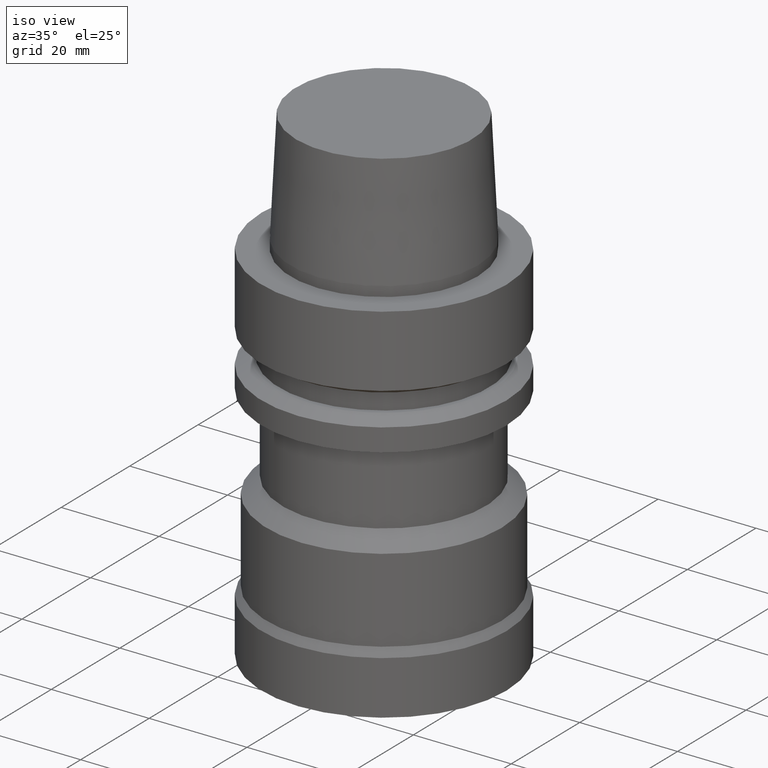
[diagram: clean part render]
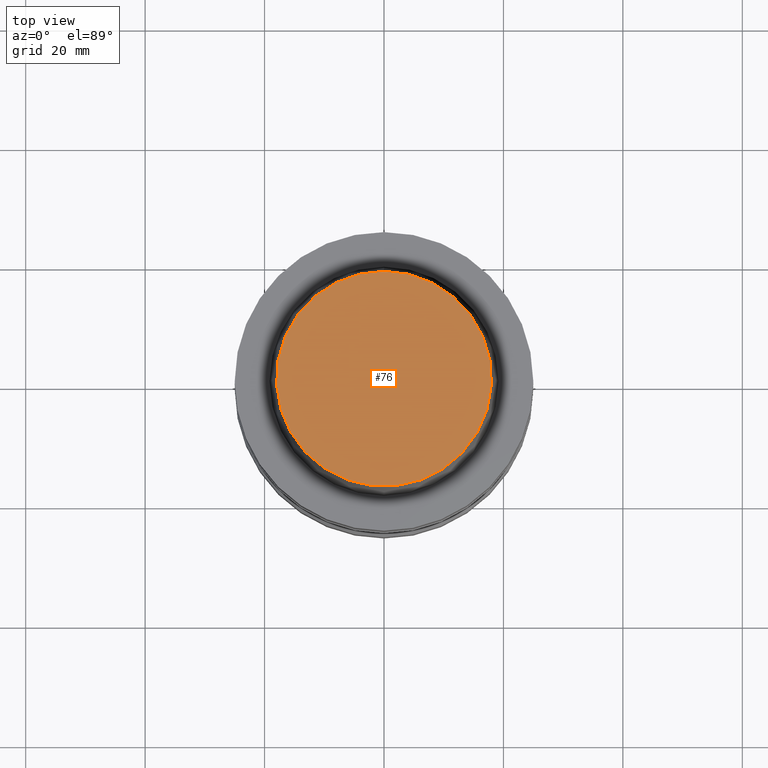
[diagram: tour spotlight — one face highlighted and labeled with its STEP entity id]
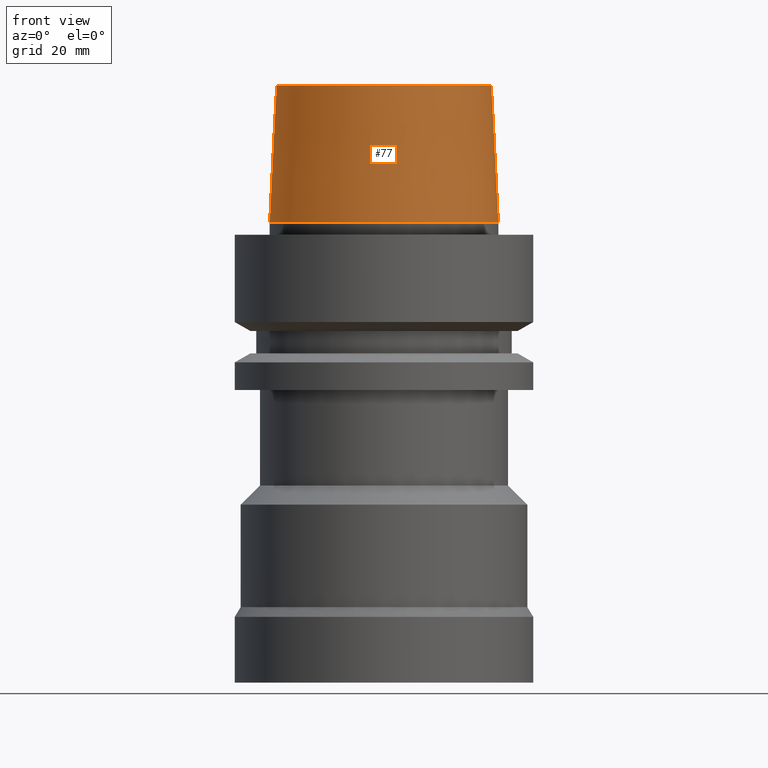
[diagram: tour spotlight — one face highlighted and labeled with its STEP entity id]
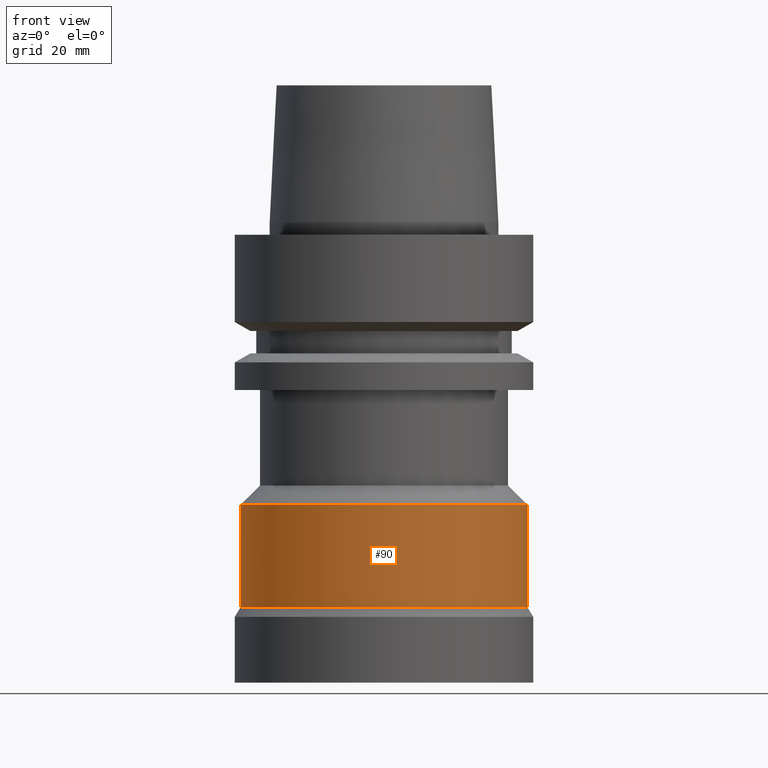
[diagram: tour spotlight — one face highlighted and labeled with its STEP entity id]
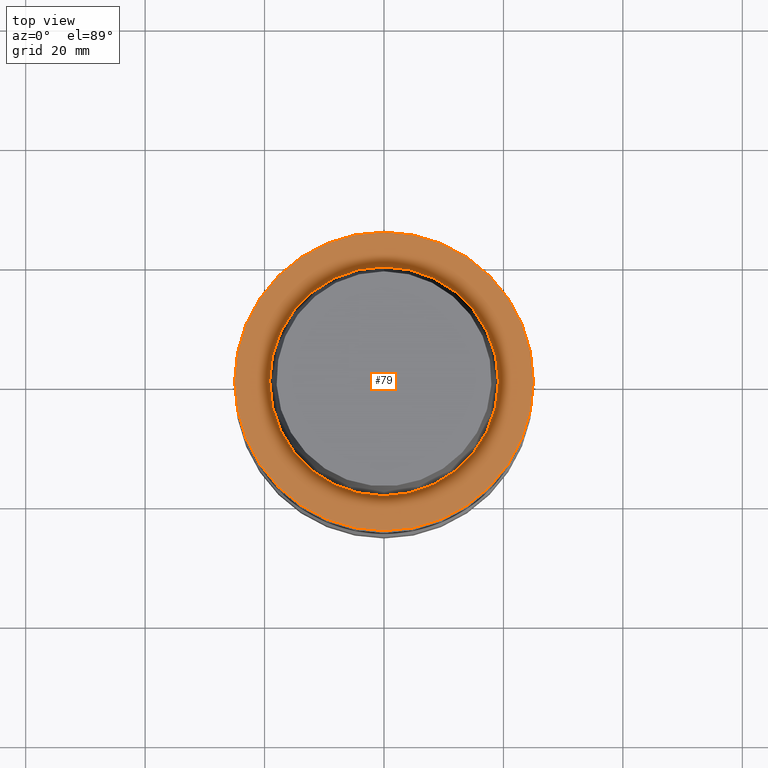
[diagram: tour spotlight — one face highlighted and labeled with its STEP entity id]
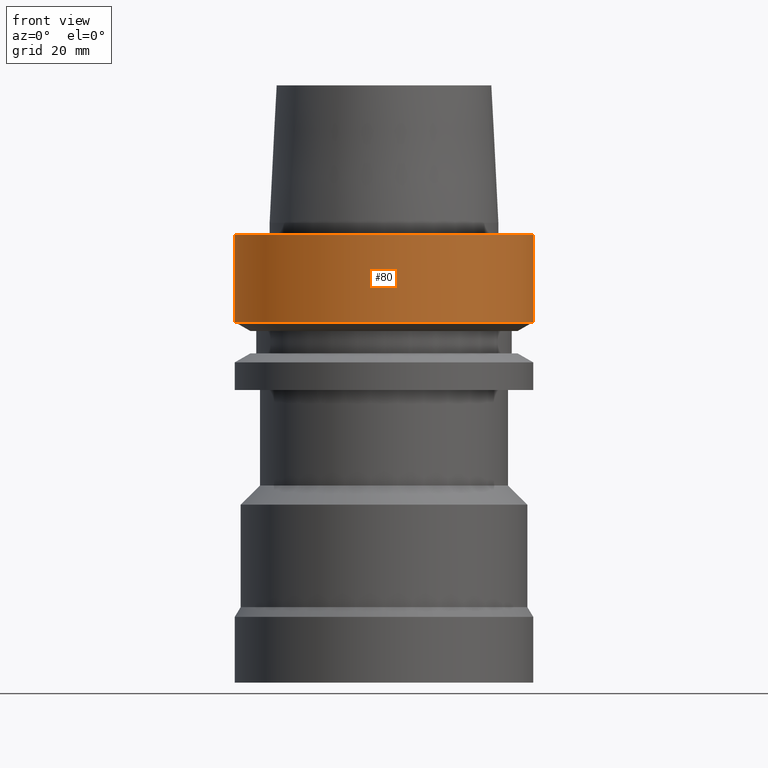
[diagram: tour spotlight — one face highlighted and labeled with its STEP entity id]
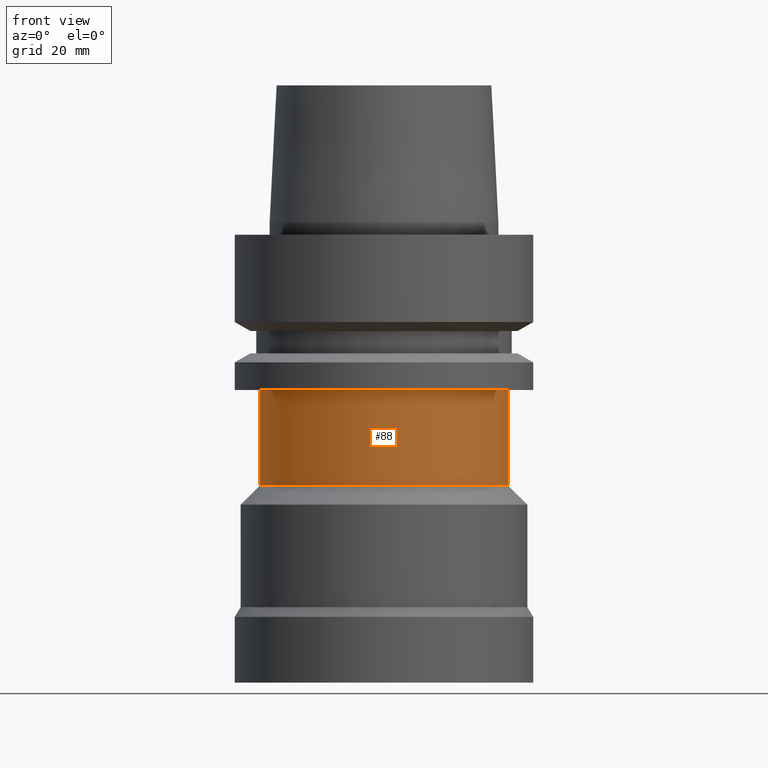
[diagram: tour spotlight — one face highlighted and labeled with its STEP entity id]
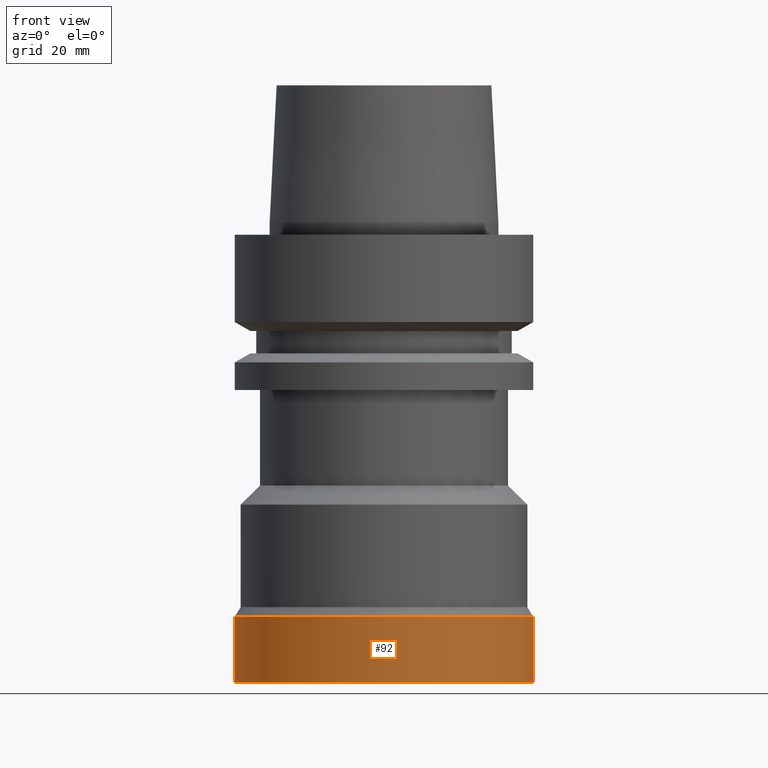
[diagram: tour spotlight — one face highlighted and labeled with its STEP entity id]
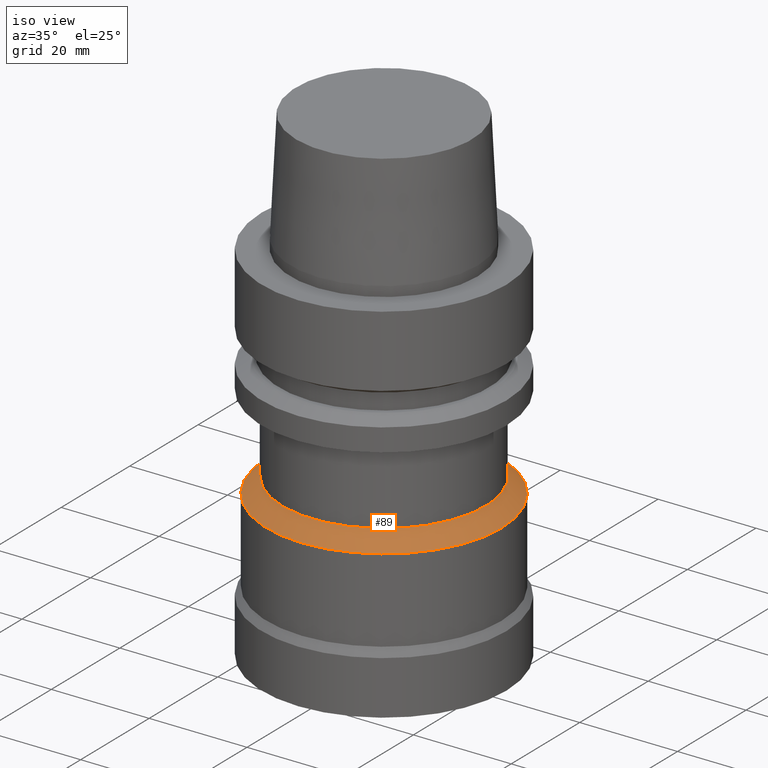
[diagram: tour spotlight — one face highlighted and labeled with its STEP entity id]
A machine part: a face-by-face anatomy tour. The part has 18 B-rep faces; the first image is the clean iso view, then the 8 largest visible faces are spotlighted one at a time (largest first), each with its STEP entity span.

Face 1 — top view, entity #76. In plain terms, the highlighted planar face has unit normal (-0, -0, 1).
Definition (entity closure, byte-faithful):
#76=ADVANCED_FACE('',(#96),#97,.T.);
#96=FACE_OUTER_BOUND('',#148,.T.);
#97=PLANE('',#149);
#148=EDGE_LOOP('',(#202));
#149=AXIS2_PLACEMENT_3D('',#203,#204,#205);
#202=ORIENTED_EDGE('',*,*,#287,.F.);
#203=CARTESIAN_POINT('',(-1.53080849893419E-015,9.00000000052154,25.0));
#204=DIRECTION('',(-6.12323399573677E-017,-1.22464679914735E-016,1.0));
#205=DIRECTION('',(1.23259516440783E-032,-1.0,-1.22464679914735E-016));
#287=EDGE_CURVE('',#305,#305,#306,.T.);
#305=VERTEX_POINT('',#339);
#306=CIRCLE('',#340,18.0000000010431);
#339=CARTESIAN_POINT('',(-1.53080849893419E-015,18.0000000010431,25.0));
#340=AXIS2_PLACEMENT_3D('',#374,#375,#376);
#374=CARTESIAN_POINT('',(-1.53080849893419E-015,-3.06161699786838E-015,25.0));
#375=DIRECTION('',(6.12323399573677E-017,1.22464679914735E-016,-1.0));
#376=DIRECTION('',(-1.23259516440783E-032,1.0,1.22464679914735E-016));

Face 2 — front view, entity #77. In plain terms, the highlighted conical surface has half-angle 2.862 deg.
Definition (entity closure, byte-faithful):
#77=ADVANCED_FACE('',(#98,#99),#100,.T.);
#98=FACE_BOUND('',#150,.T.);
#99=FACE_BOUND('',#151,.T.);
#100=CONICAL_SURFACE('',#152,18.5750000005215,0.049958395676703);
#150=EDGE_LOOP('',(#206));
#151=EDGE_LOOP('',(#207));
#152=AXIS2_PLACEMENT_3D('',#208,#209,#210);
#206=ORIENTED_EDGE('',*,*,#288,.F.);
#207=ORIENTED_EDGE('',*,*,#287,.T.);
#208=CARTESIAN_POINT('',(-8.26636589424463E-016,-1.65327317884893E-015,13.5));
#209=DIRECTION('',(6.12323399573677E-017,1.22464679914735E-016,-1.0));
#210=DIRECTION('',(-1.23259516440783E-032,1.0,1.22464679914735E-016));
#287=EDGE_CURVE('',#305,#305,#306,.T.);
#288=EDGE_CURVE('',#307,#307,#308,.T.);
#305=VERTEX_POINT('',#339);
#306=CIRCLE('',#340,18.0000000010431);
#307=VERTEX_POINT('',#341);
#308=CIRCLE('',#342,19.15);
#339=CARTESIAN_POINT('',(-1.53080849893419E-015,18.0000000010431,25.0));
#340=AXIS2_PLACEMENT_3D('',#374,#375,#376);
#341=CARTESIAN_POINT('',(-1.22464679914736E-016,19.15,2.0));
#342=AXIS2_PLACEMENT_3D('',#377,#378,#379);
#374=CARTESIAN_POINT('',(-1.53080849893419E-015,-3.06161699786838E-015,25.0));
#375=DIRECTION('',(6.12323399573677E-017,1.22464679914735E-016,-1.0));
#376=DIRECTION('',(-1.23259516440783E-032,1.0,1.22464679914735E-016));
#377=CARTESIAN_POINT('',(-1.22464679914735E-016,-2.44929359829471E-016,2.0));
#378=DIRECTION('',(6.12323399573677E-017,1.22464679914735E-016,-1.0));
#379=DIRECTION('',(-1.23259516440783E-032,1.0,1.22464679914735E-016));

Face 3 — front view, entity #90. In plain terms, the highlighted cylindrical surface (bore or boss wall) has radius 24 mm, axis along (-0, -0, 1).
Definition (entity closure, byte-faithful):
#90=ADVANCED_FACE('',(#137,#138),#139,.T.);
#137=FACE_BOUND('',#189,.T.);
#138=FACE_BOUND('',#190,.T.);
#139=CYLINDRICAL_SURFACE('',#191,24.0);
#189=EDGE_LOOP('',(#271));
#190=EDGE_LOOP('',(#272));
#191=AXIS2_PLACEMENT_3D('',#273,#274,#275);
#271=ORIENTED_EDGE('',*,*,#301,.F.);
#272=ORIENTED_EDGE('',*,*,#300,.T.);
#273=CARTESIAN_POINT('',(3.29287898866524E-015,6.58575797733049E-015,-53.776794925));
#274=DIRECTION('',(-6.12323399573677E-017,-1.22464679914735E-016,1.0));
#275=DIRECTION('',(-1.23259516440783E-032,1.0,1.22464679914735E-016));
#300=EDGE_CURVE('',#331,#331,#332,.T.);
#301=EDGE_CURVE('',#333,#333,#334,.T.);
#331=VERTEX_POINT('',#365);
#332=CIRCLE('',#366,24.0);
#333=VERTEX_POINT('',#367);
#334=CIRCLE('',#368,24.0);
#365=CARTESIAN_POINT('',(2.76770176607302E-015,24.0,-45.2));
#366=AXIS2_PLACEMENT_3D('',#413,#414,#415);
#367=CARTESIAN_POINT('',(3.81805621125747E-015,24.0,-62.35358985));
#368=AXIS2_PLACEMENT_3D('',#416,#417,#418);
#413=CARTESIAN_POINT('',(2.76770176607302E-015,5.53540353214604E-015,-45.2));
#414=DIRECTION('',(6.12323399573677E-017,1.22464679914735E-016,-1.0));
#415=DIRECTION('',(-1.23259516440783E-032,1.0,1.22464679914735E-016));
#416=CARTESIAN_POINT('',(3.81805621125747E-015,7.63611242251494E-015,-62.35358985));
#417=DIRECTION('',(6.12323399573677E-017,1.22464679914735E-016,-1.0));
#418=DIRECTION('',(-1.23259516440783E-032,1.0,1.22464679914735E-016));

Face 4 — top view, entity #79. In plain terms, the highlighted planar face has unit normal (-0, -0, 1).
Definition (entity closure, byte-faithful):
#79=ADVANCED_FACE('',(#104,#105),#106,.T.);
#104=FACE_OUTER_BOUND('',#156,.T.);
#105=FACE_BOUND('',#157,.T.);
#106=PLANE('',#158);
#156=EDGE_LOOP('',(#216));
#157=EDGE_LOOP('',(#217));
#158=AXIS2_PLACEMENT_3D('',#218,#219,#220);
#216=ORIENTED_EDGE('',*,*,#290,.F.);
#217=ORIENTED_EDGE('',*,*,#289,.T.);
#218=CARTESIAN_POINT('',(-2.72095382543029E-031,22.075,2.70340780911778E-015));
#219=DIRECTION('',(-6.12323399573677E-017,-1.22464679914735E-016,1.0));
#220=DIRECTION('',(1.23259516440783E-032,-1.0,-1.22464679914735E-016));
#289=EDGE_CURVE('',#309,#309,#310,.T.);
#290=EDGE_CURVE('',#311,#311,#312,.T.);
#309=VERTEX_POINT('',#343);
#310=CIRCLE('',#344,19.15);
#311=VERTEX_POINT('',#345);
#312=CIRCLE('',#346,25.0);
#343=CARTESIAN_POINT('',(-2.360419739841E-031,19.15,2.34519862036718E-015));
#344=AXIS2_PLACEMENT_3D('',#380,#381,#382);
#345=CARTESIAN_POINT('',(-3.08148791101958E-031,25.0,3.06161699786838E-015));
#346=AXIS2_PLACEMENT_3D('',#383,#384,#385);
#380=CARTESIAN_POINT('',(0.0,0.0,0.0));
#381=DIRECTION('',(6.12323399573677E-017,1.22464679914735E-016,-1.0));
#382=DIRECTION('',(-1.23259516440783E-032,1.0,1.22464679914735E-016));
#383=CARTESIAN_POINT('',(0.0,0.0,0.0));
#384=DIRECTION('',(6.12323399573677E-017,1.22464679914735E-016,-1.0));
#385=DIRECTION('',(-1.23259516440783E-032,1.0,1.22464679914735E-016));

Face 5 — front view, entity #80. In plain terms, the highlighted cylindrical surface (bore or boss wall) has radius 25 mm, axis along (-0, -0, 1).
Definition (entity closure, byte-faithful):
#80=ADVANCED_FACE('',(#107,#108),#109,.T.);
#107=FACE_BOUND('',#159,.T.);
#108=FACE_BOUND('',#160,.T.);
#109=CYLINDRICAL_SURFACE('',#161,25.0);
#159=EDGE_LOOP('',(#221));
#160=EDGE_LOOP('',(#222));
#161=AXIS2_PLACEMENT_3D('',#223,#224,#225);
#221=ORIENTED_EDGE('',*,*,#291,.F.);
#222=ORIENTED_EDGE('',*,*,#290,.T.);
#223=CARTESIAN_POINT('',(4.47684973986342E-016,8.95369947972685E-016,-7.311250465));
#224=DIRECTION('',(-6.12323399573677E-017,-1.22464679914735E-016,1.0));
#225=DIRECTION('',(-1.23259516440783E-032,1.0,1.22464679914735E-016));
#290=EDGE_CURVE('',#311,#311,#312,.T.);
#291=EDGE_CURVE('',#313,#313,#314,.T.);
#311=VERTEX_POINT('',#345);
#312=CIRCLE('',#346,25.0);
#313=VERTEX_POINT('',#347);
#314=CIRCLE('',#348,25.0);
#345=CARTESIAN_POINT('',(-3.08148791101958E-031,25.0,3.06161699786838E-015));
#346=AXIS2_PLACEMENT_3D('',#383,#384,#385);
#347=CARTESIAN_POINT('',(8.95369947972684E-016,25.0,-14.62250093));
#348=AXIS2_PLACEMENT_3D('',#386,#387,#388);
#383=CARTESIAN_POINT('',(0.0,0.0,0.0));
#384=DIRECTION('',(6.12323399573677E-017,1.22464679914735E-016,-1.0));
#385=DIRECTION('',(-1.23259516440783E-032,1.0,1.22464679914735E-016));
#386=CARTESIAN_POINT('',(8.95369947972685E-016,1.79073989594537E-015,-14.62250093));
#387=DIRECTION('',(6.12323399573677E-017,1.22464679914735E-016,-1.0));
#388=DIRECTION('',(-1.23259516440783E-032,1.0,1.22464679914735E-016));

Face 6 — front view, entity #88. In plain terms, the highlighted cylindrical surface (bore or boss wall) has radius 20.8 mm, axis along (-0, -0, 1).
Definition (entity closure, byte-faithful):
#88=ADVANCED_FACE('',(#131,#132),#133,.T.);
#131=FACE_BOUND('',#183,.T.);
#132=FACE_BOUND('',#184,.T.);
#133=CYLINDRICAL_SURFACE('',#185,20.8);
#183=EDGE_LOOP('',(#261));
#184=EDGE_LOOP('',(#262));
#185=AXIS2_PLACEMENT_3D('',#263,#264,#265);
#261=ORIENTED_EDGE('',*,*,#299,.F.);
#262=ORIENTED_EDGE('',*,*,#298,.T.);
#263=CARTESIAN_POINT('',(2.0818995585505E-015,4.163799117101E-015,-34.0));
#264=DIRECTION('',(-6.12323399573677E-017,-1.22464679914735E-016,1.0));
#265=DIRECTION('',(-1.23259516440783E-032,1.0,1.22464679914735E-016));
#298=EDGE_CURVE('',#327,#327,#328,.T.);
#299=EDGE_CURVE('',#329,#329,#330,.T.);
#327=VERTEX_POINT('',#361);
#328=CIRCLE('',#362,20.8);
#329=VERTEX_POINT('',#363);
#330=CIRCLE('',#364,20.8);
#361=CARTESIAN_POINT('',(1.59204083889156E-015,20.8,-26.0));
#362=AXIS2_PLACEMENT_3D('',#407,#408,#409);
#363=CARTESIAN_POINT('',(2.57175827820944E-015,20.8,-42.0));
#364=AXIS2_PLACEMENT_3D('',#410,#411,#412);
#407=CARTESIAN_POINT('',(1.59204083889156E-015,3.18408167778312E-015,-26.0));
#408=DIRECTION('',(6.12323399573677E-017,1.22464679914735E-016,-1.0));
#409=DIRECTION('',(-1.23259516440783E-032,1.0,1.22464679914735E-016));
#410=CARTESIAN_POINT('',(2.57175827820944E-015,5.14351655641888E-015,-42.0));
#411=DIRECTION('',(6.12323399573677E-017,1.22464679914735E-016,-1.0));
#412=DIRECTION('',(-1.23259516440783E-032,1.0,1.22464679914735E-016));

Face 7 — front view, entity #92. In plain terms, the highlighted cylindrical surface (bore or boss wall) has radius 25 mm, axis along (-0, -0, 1).
Definition (entity closure, byte-faithful):
#92=ADVANCED_FACE('',(#143,#144),#145,.T.);
#143=FACE_BOUND('',#195,.T.);
#144=FACE_BOUND('',#196,.T.);
#145=CYLINDRICAL_SURFACE('',#197,25.0);
#195=EDGE_LOOP('',(#281));
#196=EDGE_LOOP('',(#282));
#197=AXIS2_PLACEMENT_3D('',#283,#284,#285);
#281=ORIENTED_EDGE('',*,*,#286,.F.);
#282=ORIENTED_EDGE('',*,*,#302,.T.);
#283=CARTESIAN_POINT('',(4.25564762703705E-015,8.5112952540741E-015,-69.5));
#284=DIRECTION('',(-6.12323399573677E-017,-1.22464679914735E-016,1.0));
#285=DIRECTION('',(-1.23259516440783E-032,1.0,1.22464679914735E-016));
#286=EDGE_CURVE('',#303,#303,#304,.T.);
#302=EDGE_CURVE('',#335,#335,#336,.T.);
#303=VERTEX_POINT('',#337);
#304=CIRCLE('',#338,25.0);
#335=VERTEX_POINT('',#369);
#336=CIRCLE('',#370,25.0);
#337=CARTESIAN_POINT('',(4.59242549680257E-015,25.0,-75.0));
#338=AXIS2_PLACEMENT_3D('',#371,#372,#373);
#369=CARTESIAN_POINT('',(3.91886975727153E-015,25.0,-64.0));
#370=AXIS2_PLACEMENT_3D('',#419,#420,#421);
#371=CARTESIAN_POINT('',(4.59242549680257E-015,9.18485099360515E-015,-75.0));
#372=DIRECTION('',(6.12323399573677E-017,1.22464679914735E-016,-1.0));
#373=DIRECTION('',(-1.23259516440783E-032,1.0,1.22464679914735E-016));
#419=CARTESIAN_POINT('',(3.91886975727153E-015,7.83773951454306E-015,-64.0));
#420=DIRECTION('',(6.12323399573677E-017,1.22464679914735E-016,-1.0));
#421=DIRECTION('',(-1.23259516440783E-032,1.0,1.22464679914735E-016));

Face 8 — iso view, entity #89. In plain terms, the highlighted conical surface has half-angle 45 deg.
Definition (entity closure, byte-faithful):
#89=ADVANCED_FACE('',(#134,#135),#136,.T.);
#134=FACE_BOUND('',#186,.T.);
#135=FACE_BOUND('',#187,.T.);
#136=CONICAL_SURFACE('',#188,22.4,0.785398163397448);
#186=EDGE_LOOP('',(#266));
#187=EDGE_LOOP('',(#267));
#188=AXIS2_PLACEMENT_3D('',#268,#269,#270);
#266=ORIENTED_EDGE('',*,*,#300,.F.);
#267=ORIENTED_EDGE('',*,*,#299,.T.);
#268=CARTESIAN_POINT('',(2.66973002214123E-015,5.33946004428246E-015,-43.6));
#269=DIRECTION('',(6.12323399573677E-017,1.22464679914735E-016,-1.0));
#270=DIRECTION('',(-1.23259516440783E-032,1.0,1.22464679914735E-016));
#299=EDGE_CURVE('',#329,#329,#330,.T.);
#300=EDGE_CURVE('',#331,#331,#332,.T.);
#329=VERTEX_POINT('',#363);
#330=CIRCLE('',#364,20.8);
#331=VERTEX_POINT('',#365);
#332=CIRCLE('',#366,24.0);
#363=CARTESIAN_POINT('',(2.57175827820944E-015,20.8,-42.0));
#364=AXIS2_PLACEMENT_3D('',#410,#411,#412);
#365=CARTESIAN_POINT('',(2.76770176607302E-015,24.0,-45.2));
#366=AXIS2_PLACEMENT_3D('',#413,#414,#415);
#410=CARTESIAN_POINT('',(2.57175827820944E-015,5.14351655641888E-015,-42.0));
#411=DIRECTION('',(6.12323399573677E-017,1.22464679914735E-016,-1.0));
#412=DIRECTION('',(-1.23259516440783E-032,1.0,1.22464679914735E-016));
#413=CARTESIAN_POINT('',(2.76770176607302E-015,5.53540353214604E-015,-45.2));
#414=DIRECTION('',(6.12323399573677E-017,1.22464679914735E-016,-1.0));
#415=DIRECTION('',(-1.23259516440783E-032,1.0,1.22464679914735E-016));